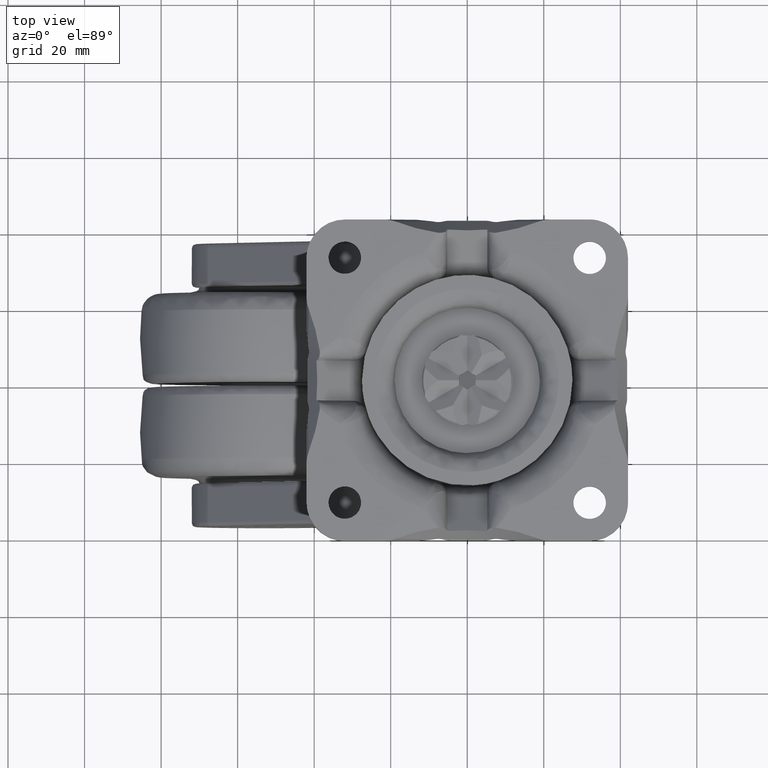
[diagram: clean part render]
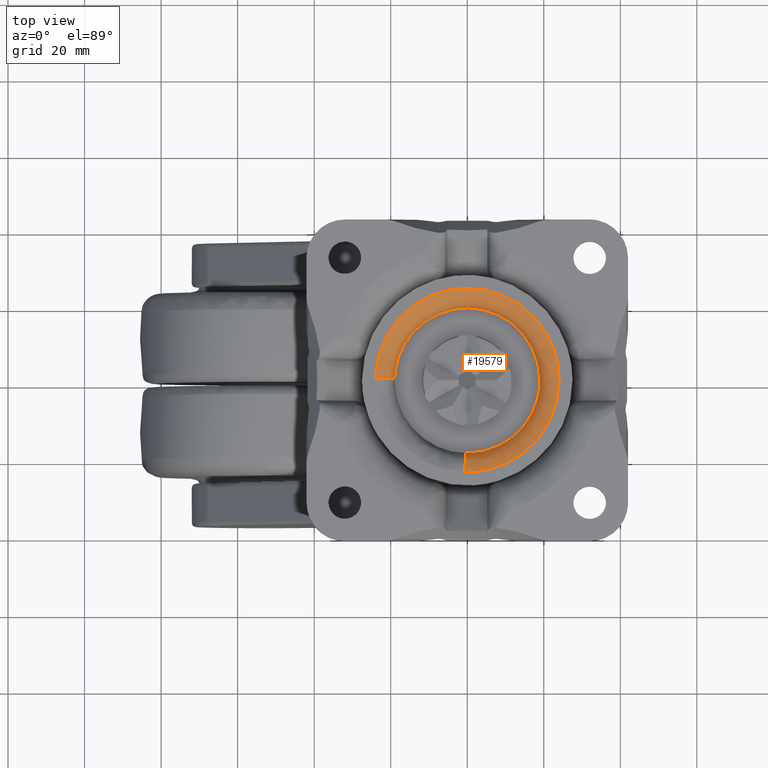
[diagram: same view with one face highlighted and labeled with its STEP entity id]
A machine part, top view. The second image highlights one B-rep face of the part: STEP entity #19579.
In plain terms, the highlighted face is a freeform B-spline surface patch.
Its self-contained STEP definition (entity closure, byte-faithful):
#19450=CARTESIAN_POINT('',(-0.611883167701663,-24.340931367298026,17.987831538077472));
#19451=CARTESIAN_POINT('',(23.729048199596370,-24.952814534999685,17.987831538077472));
#19452=CARTESIAN_POINT('',(24.340931367298026,-0.611883167701665,17.987831538077472));
#19453=CARTESIAN_POINT('',(24.952814534999685,23.729048199596370,17.987831538077472));
#19454=CARTESIAN_POINT('',(0.611883167701666,24.340931367298026,17.987831538077472));
#19455=CARTESIAN_POINT('',(-23.729048199596370,24.952814534999685,17.987831538077472));
#19456=CARTESIAN_POINT('',(-24.340931367298026,0.611883167701668,17.987831538077472));
#19457=CARTESIAN_POINT('',(-0.467754548137980,-18.607443306104081,18.388696188239386));
#19458=CARTESIAN_POINT('',(18.139688757966105,-19.075197854242059,18.388696188239376));
#19459=CARTESIAN_POINT('',(18.607443306104081,-0.467754548137981,18.388696188239386));
#19460=CARTESIAN_POINT('',(19.075197854242070,18.139688757966105,18.388696188239376));
#19461=CARTESIAN_POINT('',(0.467754548137982,18.607443306104081,18.388696188239386));
#19462=CARTESIAN_POINT('',(-18.139688757966102,19.075197854242070,18.388696188239376));
#19463=CARTESIAN_POINT('',(-18.607443306104081,0.467754548137984,18.388696188239386));
#19464=CARTESIAN_POINT('',(-0.477774335725788,-19.006034041825455,12.653247129636036));
#19465=CARTESIAN_POINT('',(18.528259706099664,-19.483808377551231,12.653247129636032));
#19466=CARTESIAN_POINT('',(19.006034041825455,-0.477774335725789,12.653247129636036));
#19467=CARTESIAN_POINT('',(19.483808377551249,18.528259706099664,12.653247129636032));
#19468=CARTESIAN_POINT('',(0.477774335725790,19.006034041825455,12.653247129636036));
#19469=CARTESIAN_POINT('',(-18.528259706099664,19.483808377551249,12.653247129636032));
#19470=CARTESIAN_POINT('',(-19.006034041825455,0.477774335725791,12.653247129636036));
#19478=(BOUNDED_SURFACE()B_SPLINE_SURFACE(2,2,((#19450,#19457,#19464),(#19451,#19458,#19465),(#19452,#19459,#19466),(#19453,#19460,#19467),(#19454,#19461,#19468),(#19455,#19462,#19469),(#19456,#19463,#19470)),.UNSPECIFIED.,.F.,.F.,.U.)B_SPLINE_SURFACE_WITH_KNOTS((3,2,2,3),(3,3),(0.0,40.342116045091508,80.684232090183016,121.026348135274500),(0.0,9.111851625964397),.UNSPECIFIED.)GEOMETRIC_REPRESENTATION_ITEM()RATIONAL_B_SPLINE_SURFACE(((0.910892941386805,0.599412934105556,0.915966621324616),(0.644098575789570,0.423848950436964,0.647686209279166),(0.910892941386805,0.599412934105556,0.915966621324616),(0.644098575789570,0.423848950436964,0.647686209279166),(0.910892941386805,0.599412934105556,0.915966621324616),(0.644098575789570,0.423848950436964,0.647686209279166),(0.910892941386805,0.599412934105556,0.915966621324616)))REPRESENTATION_ITEM('')SURFACE());
#19479=CARTESIAN_POINT('',(24.0,0.0,18.0));
#19480=VERTEX_POINT('',#19479);
#19481=CARTESIAN_POINT('',(-0.603122291324437,-23.992420538747641,18.0));
#19482=VERTEX_POINT('',#19481);
#19483=CARTESIAN_POINT('',(24.0,0.0,18.0));
#19484=CARTESIAN_POINT('',(23.999999999999996,-23.999999999999996,18.000000000000007));
#19485=CARTESIAN_POINT('',(0.0,-24.0,18.0));
#19486=CARTESIAN_POINT('',(-0.301608771747167,-24.000000000000004,17.999999999999996));
#19487=CARTESIAN_POINT('',(-0.603122291324437,-23.992420538747641,17.999999999999996));
#19495=(BOUNDED_CURVE()B_SPLINE_CURVE(2,(#19483,#19484,#19485,#19486,#19487),.UNSPECIFIED.,.F.,.U.)B_SPLINE_CURVE_WITH_KNOTS((3,2,3),(0.0,0.250000000000000,0.254420108241653),.UNSPECIFIED.)CURVE()GEOMETRIC_REPRESENTATION_ITEM()RATIONAL_B_SPLINE_CURVE((1.0,0.707106781186548,1.0,0.994821521078394,0.989826157655673))REPRESENTATION_ITEM(''));
#19496=EDGE_CURVE('',#19480,#19482,#19495,.T.);
#19497=ORIENTED_EDGE('',*,*,#19496,.F.);
#19498=CARTESIAN_POINT('',(-23.992420537875631,0.603122291452606,18.0));
#19499=VERTEX_POINT('',#19498);
#19500=CARTESIAN_POINT('',(-23.992420537875628,0.603122291452606,18.0));
#19501=CARTESIAN_POINT('',(-23.404269026509514,24.000000000000007,17.999999999999996));
#19502=CARTESIAN_POINT('',(0.0,24.0,18.0));
#19503=CARTESIAN_POINT('',(23.999999999999996,23.999999999999996,18.000000000000007));
#19504=CARTESIAN_POINT('',(24.0,0.0,18.0));
#19512=(BOUNDED_CURVE()B_SPLINE_CURVE(2,(#19500,#19501,#19502,#19503,#19504),.UNSPECIFIED.,.F.,.U.)B_SPLINE_CURVE_WITH_KNOTS((3,2,3),(0.504420108243840,0.750000000000000,1.0),.UNSPECIFIED.)CURVE()GEOMETRIC_REPRESENTATION_ITEM()RATIONAL_B_SPLINE_CURVE((0.989826157650728,0.712285260110717,1.0,0.707106781186548,1.0))REPRESENTATION_ITEM(''));
#19513=EDGE_CURVE('',#19499,#19480,#19512,.T.);
#19514=ORIENTED_EDGE('',*,*,#19513,.F.);
#19515=CARTESIAN_POINT('',(-18.993999596378771,0.477471813579403,13.000000000611310));
#19516=VERTEX_POINT('',#19515);
#19517=CARTESIAN_POINT('',(-23.992420537875628,0.603122291452606,18.0));
#19518=CARTESIAN_POINT('',(-18.993999597604901,0.477471813454141,17.999999990196820));
#19519=CARTESIAN_POINT('',(-18.993999596378774,0.477471813579403,13.000000000611310));
#19527=(BOUNDED_CURVE()B_SPLINE_CURVE(2,(#19517,#19518,#19519),.UNSPECIFIED.,.F.,.U.)B_SPLINE_CURVE_WITH_KNOTS((3,3),(-1.723441279966117,-0.263586879180901),.UNSPECIFIED.)CURVE()GEOMETRIC_REPRESENTATION_ITEM()RATIONAL_B_SPLINE_CURVE((0.883897566427202,0.626638727644246,0.888510408971757))REPRESENTATION_ITEM(''));
#19528=EDGE_CURVE('',#19499,#19516,#19527,.T.);
#19529=ORIENTED_EDGE('',*,*,#19528,.T.);
#19530=CARTESIAN_POINT('',(19.0,0.0,13.0));
#19531=VERTEX_POINT('',#19530);
#19532=CARTESIAN_POINT('',(19.0,0.0,13.0));
#19533=CARTESIAN_POINT('',(18.999999999999993,18.999999999999993,13.000000000000002));
#19534=CARTESIAN_POINT('',(0.0,19.0,13.0));
#19535=CARTESIAN_POINT('',(-18.528379647127849,18.999999999999993,13.0));
#19536=CARTESIAN_POINT('',(-18.993999596378774,0.477471813579403,13.000000000611307));
#19544=(BOUNDED_CURVE()B_SPLINE_CURVE(2,(#19532,#19533,#19534,#19535,#19536),.UNSPECIFIED.,.F.,.U.)B_SPLINE_CURVE_WITH_KNOTS((3,2,3),(0.500000000000000,0.750000000000000,0.995579891766933),.UNSPECIFIED.)CURVE()GEOMETRIC_REPRESENTATION_ITEM()RATIONAL_B_SPLINE_CURVE((1.0,0.707106781186548,1.0,0.712285260098095,0.989826157675079))REPRESENTATION_ITEM(''));
#19545=EDGE_CURVE('',#19531,#19516,#19544,.T.);
#19546=ORIENTED_EDGE('',*,*,#19545,.F.);
#19547=CARTESIAN_POINT('',(-0.477471813576893,-18.993999596378838,13.000000000611211));
#19548=VERTEX_POINT('',#19547);
#19549=CARTESIAN_POINT('',(-0.477471813576893,-18.993999596378838,13.000000000611209));
#19550=CARTESIAN_POINT('',(-0.238773610497762,-19.0,13.000000000000004));
#19551=CARTESIAN_POINT('',(0.0,-19.0,13.0));
#19552=CARTESIAN_POINT('',(18.999999999999993,-18.999999999999993,13.000000000000002));
#19553=CARTESIAN_POINT('',(19.0,0.0,13.0));
#19561=(BOUNDED_CURVE()B_SPLINE_CURVE(2,(#19549,#19550,#19551,#19552,#19553),.UNSPECIFIED.,.F.,.U.)B_SPLINE_CURVE_WITH_KNOTS((3,2,3),(0.245579891766980,0.250000000000000,0.500000000000000),.UNSPECIFIED.)CURVE()GEOMETRIC_REPRESENTATION_ITEM()RATIONAL_B_SPLINE_CURVE((0.989826157675185,0.994821521088507,1.0,0.707106781186548,1.0))REPRESENTATION_ITEM(''));
#19562=EDGE_CURVE('',#19548,#19531,#19561,.T.);
#19563=ORIENTED_EDGE('',*,*,#19562,.F.);
#19564=CARTESIAN_POINT('',(-0.603122291324437,-23.992420538747641,18.0));
#19565=CARTESIAN_POINT('',(-0.477471813454138,-18.993999597604731,17.999999991933837));
#19566=CARTESIAN_POINT('',(-0.477471813576893,-18.993999596378838,13.000000000611212));
#19574=(BOUNDED_CURVE()B_SPLINE_CURVE(2,(#19564,#19565,#19566),.UNSPECIFIED.,.F.,.U.)B_SPLINE_CURVE_WITH_KNOTS((3,3),(-1.723441280323803,-0.263586879180863),.UNSPECIFIED.)CURVE()GEOMETRIC_REPRESENTATION_ITEM()RATIONAL_B_SPLINE_CURVE((0.883897566553266,0.626638727580077,0.888510408971771))REPRESENTATION_ITEM(''));
#19575=EDGE_CURVE('',#19482,#19548,#19574,.T.);
#19576=ORIENTED_EDGE('',*,*,#19575,.F.);
#19577=EDGE_LOOP('',(#19497,#19514,#19529,#19546,#19563,#19576));
#19578=FACE_OUTER_BOUND('',#19577,.T.);
#19579=ADVANCED_FACE('',(#19578),#19478,.T.);